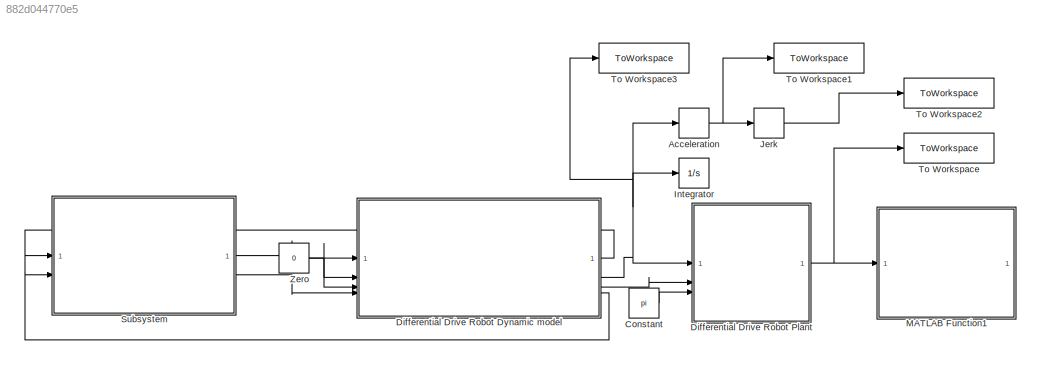
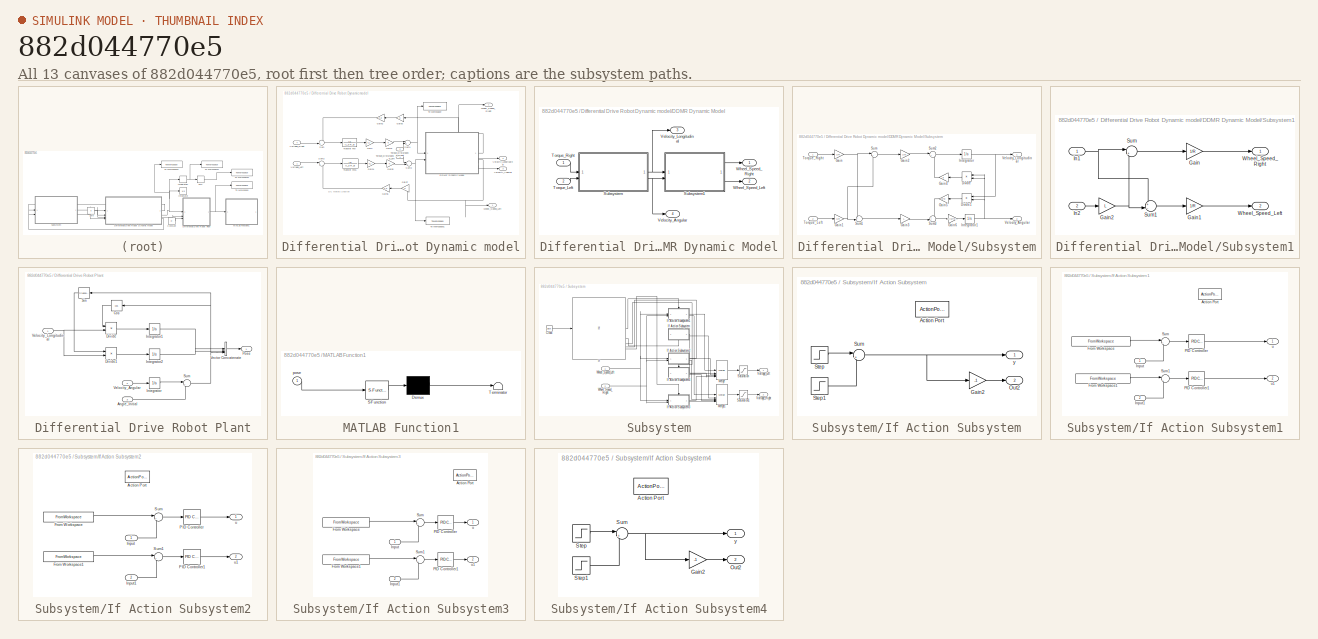
[diagram: thumbnail index - all 13 canvases of the model, root first then tree order]
MODEL slx_882d044770e5
KIND model
CONFIG AbsTol = auto
CONFIG EnableMultiTasking = off
CONFIG FixedStep = auto
CONFIG MaxStep = auto
CONFIG MinStep = auto
CONFIG RelTol = 1e-3
CONFIG SampleTimeConstraint = Unconstrained
CONFIG SolverName = VariableStepAuto
CONFIG StartTime = 0.0
CONFIG StopTime = 23.55
BLOCK [Derivative] Acceleration
BLOCK [Constant] Constant
  Value = pi
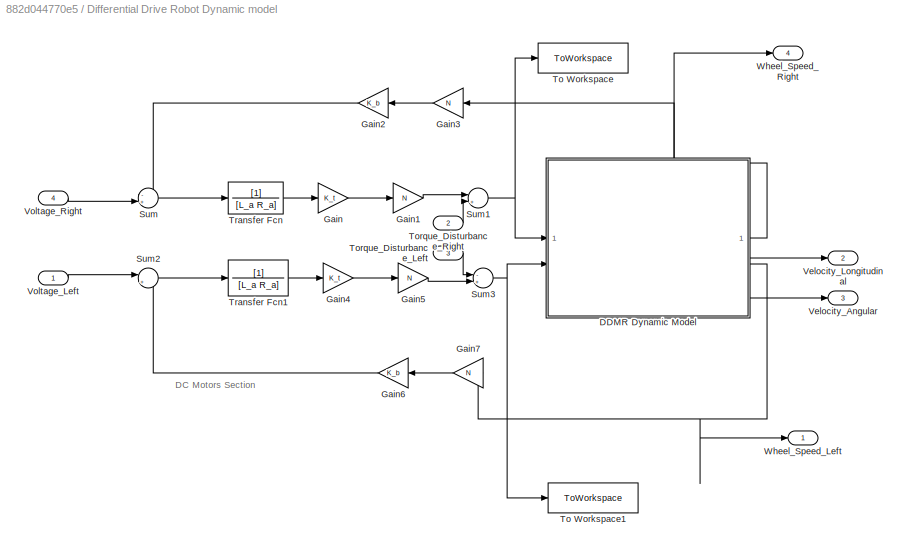
BLOCK [SubSystem] Differential Drive Robot Dynamic model
BLOCK [SubSystem] Differential Drive Robot Dynamic model/DDMR Dynamic Model
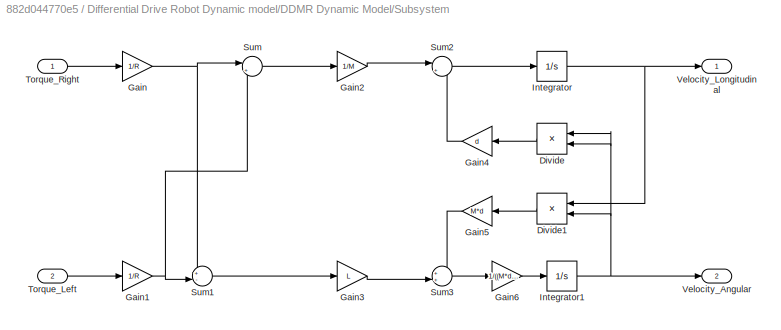
BLOCK [SubSystem] Differential Drive Robot Dynamic model/DDMR Dynamic Model/Subsystem
BLOCK [Product] Differential Drive Robot Dynamic model/DDMR Dynamic Model/Subsystem/Divide
  Inputs = **
BLOCK [Product] Differential Drive Robot Dynamic model/DDMR Dynamic Model/Subsystem/Divide1
  Inputs = **
BLOCK [Gain] Differential Drive Robot Dynamic model/DDMR Dynamic Model/Subsystem/Gain
  Gain = 1/R
BLOCK [Gain] Differential Drive Robot Dynamic model/DDMR Dynamic Model/Subsystem/Gain1
  Gain = 1/R
BLOCK [Gain] Differential Drive Robot Dynamic model/DDMR Dynamic Model/Subsystem/Gain2
  Gain = 1/M
BLOCK [Gain] Differential Drive Robot Dynamic model/DDMR Dynamic Model/Subsystem/Gain3
  Gain = L
BLOCK [Gain] Differential Drive Robot Dynamic model/DDMR Dynamic Model/Subsystem/Gain4
  Gain = d
BLOCK [Gain] Differential Drive Robot Dynamic model/DDMR Dynamic Model/Subsystem/Gain5
  Gain = M*d
BLOCK [Gain] Differential Drive Robot Dynamic model/DDMR Dynamic Model/Subsystem/Gain6
  Gain = 1/((M*d^2) + J)
BLOCK [Integrator] Differential Drive Robot Dynamic model/DDMR Dynamic Model/Subsystem/Integrator
BLOCK [Integrator] Differential Drive Robot Dynamic model/DDMR Dynamic Model/Subsystem/Integrator1
BLOCK [Sum] Differential Drive Robot Dynamic model/DDMR Dynamic Model/Subsystem/Sum
  Inputs = |++
BLOCK [Sum] Differential Drive Robot Dynamic model/DDMR Dynamic Model/Subsystem/Sum1
  Inputs = +-|
BLOCK [Sum] Differential Drive Robot Dynamic model/DDMR Dynamic Model/Subsystem/Sum2
  Inputs = |++
BLOCK [Sum] Differential Drive Robot Dynamic model/DDMR Dynamic Model/Subsystem/Sum3
  Inputs = ++|
BLOCK [Inport] Differential Drive Robot Dynamic model/DDMR Dynamic Model/Subsystem/Torque_Left
  Port = 2
BLOCK [Inport] Differential Drive Robot Dynamic model/DDMR Dynamic Model/Subsystem/Torque_Right
BLOCK [Outport] Differential Drive Robot Dynamic model/DDMR Dynamic Model/Subsystem/Velocity_Angular
  Port = 2
BLOCK [Outport] Differential Drive Robot Dynamic model/DDMR Dynamic Model/Subsystem/Velocity_Longitudinal
BLOCK [SubSystem] Differential Drive Robot Dynamic model/DDMR Dynamic Model/Subsystem1
BLOCK [Gain] Differential Drive Robot Dynamic model/DDMR Dynamic Model/Subsystem1/Gain
  Gain = 1/R
BLOCK [Gain] Differential Drive Robot Dynamic model/DDMR Dynamic Model/Subsystem1/Gain1
  Gain = 1/R
BLOCK [Gain] Differential Drive Robot Dynamic model/DDMR Dynamic Model/Subsystem1/Gain2
  Gain = L
BLOCK [Inport] Differential Drive Robot Dynamic model/DDMR Dynamic Model/Subsystem1/In1
BLOCK [Inport] Differential Drive Robot Dynamic model/DDMR Dynamic Model/Subsystem1/In2
  Port = 2
BLOCK [Sum] Differential Drive Robot Dynamic model/DDMR Dynamic Model/Subsystem1/Sum
  Inputs = |++
BLOCK [Sum] Differential Drive Robot Dynamic model/DDMR Dynamic Model/Subsystem1/Sum1
  Inputs = +-|
BLOCK [Outport] Differential Drive Robot Dynamic model/DDMR Dynamic Model/Subsystem1/Wheel_Speed_Left
  Port = 2
BLOCK [Outport] Differential Drive Robot Dynamic model/DDMR Dynamic Model/Subsystem1/Wheel_Speed_Right
BLOCK [Inport] Differential Drive Robot Dynamic model/DDMR Dynamic Model/Torque_Left
  Port = 2
BLOCK [Inport] Differential Drive Robot Dynamic model/DDMR Dynamic Model/Torque_Right
BLOCK [Outport] Differential Drive Robot Dynamic model/DDMR Dynamic Model/Velocity_Angular
  Port = 4
BLOCK [Outport] Differential Drive Robot Dynamic model/DDMR Dynamic Model/Velocity_Longitudinal
  Port = 3
BLOCK [Outport] Differential Drive Robot Dynamic model/DDMR Dynamic Model/Wheel_Speed_Left
  Port = 2
BLOCK [Outport] Differential Drive Robot Dynamic model/DDMR Dynamic Model/Wheel_Speed_Right
BLOCK [Gain] Differential Drive Robot Dynamic model/Gain
  Gain = K_t
BLOCK [Gain] Differential Drive Robot Dynamic model/Gain1
  Gain = N
BLOCK [Gain] Differential Drive Robot Dynamic model/Gain2
  Gain = K_b
BLOCK [Gain] Differential Drive Robot Dynamic model/Gain3
  Gain = N
BLOCK [Gain] Differential Drive Robot Dynamic model/Gain4
  Gain = K_t
BLOCK [Gain] Differential Drive Robot Dynamic model/Gain5
  Gain = N
BLOCK [Gain] Differential Drive Robot Dynamic model/Gain6
  Gain = K_b
BLOCK [Gain] Differential Drive Robot Dynamic model/Gain7
  Gain = N
BLOCK [Sum] Differential Drive Robot Dynamic model/Sum
  Inputs = -+|
BLOCK [Sum] Differential Drive Robot Dynamic model/Sum1
  Inputs = |+-
BLOCK [Sum] Differential Drive Robot Dynamic model/Sum2
  Inputs = |+-
BLOCK [Sum] Differential Drive Robot Dynamic model/Sum3
  Inputs = -+|
BLOCK [ToWorkspace] Differential Drive Robot Dynamic model/To Workspace
  FixptAsFi = on
  MaxDataPoints = inf
  SampleTime = -1
  Save2DSignal = 2-D array (concatenate along first dimension)
  SaveFormat = Structure With Time
  VariableName = torque_right_wheel
BLOCK [ToWorkspace] Differential Drive Robot Dynamic model/To Workspace1
  FixptAsFi = on
  MaxDataPoints = inf
  SampleTime = -1
  SaveFormat = Structure With Time
  VariableName = torque_left_wheel
BLOCK [Inport] Differential Drive Robot Dynamic model/Torque_Disturbance_Left
  Port = 3
BLOCK [Inport] Differential Drive Robot Dynamic model/Torque_Disturbance_Right
  Port = 2
BLOCK [TransferFcn] Differential Drive Robot Dynamic model/Transfer Fcn
  Denominator = [L_a R_a]
BLOCK [TransferFcn] Differential Drive Robot Dynamic model/Transfer Fcn1
  Denominator = [L_a R_a]
BLOCK [Outport] Differential Drive Robot Dynamic model/Velocity_Angular
  Port = 3
BLOCK [Outport] Differential Drive Robot Dynamic model/Velocity_Longitudinal
  Port = 2
BLOCK [Inport] Differential Drive Robot Dynamic model/Voltage_Left
BLOCK [Inport] Differential Drive Robot Dynamic model/Voltage_Right
  Port = 4
BLOCK [Outport] Differential Drive Robot Dynamic model/Wheel_Speed_Left
BLOCK [Outport] Differential Drive Robot Dynamic model/Wheel_Speed_Right
  Port = 4
BLOCK [SubSystem] Differential Drive Robot Plant
BLOCK [Inport] Differential Drive Robot Plant/Angle_Initial
  Port = 3
BLOCK [Trigonometry] Differential Drive Robot Plant/Cos
  Operator = cos
BLOCK [Product] Differential Drive Robot Plant/Divide
  Inputs = **
BLOCK [Product] Differential Drive Robot Plant/Divide1
  Inputs = **
BLOCK [Integrator] Differential Drive Robot Plant/Integrator
BLOCK [Integrator] Differential Drive Robot Plant/Integrator1
BLOCK [Integrator] Differential Drive Robot Plant/Integrator2
BLOCK [Outport] Differential Drive Robot Plant/Pose
BLOCK [Trigonometry] Differential Drive Robot Plant/Sin
BLOCK [Sum] Differential Drive Robot Plant/Sum
  Inputs = |++
BLOCK [Concatenate] Differential Drive Robot Plant/Vector Concatenate
  NumInputs = 3
BLOCK [Inport] Differential Drive Robot Plant/Velocity_Angular
  Port = 2
BLOCK [Inport] Differential Drive Robot Plant/Velocity_Longitudinal
BLOCK [Integrator] Integrator
BLOCK [Derivative] Jerk
BLOCK [SubSystem] MATLAB Function1
  ErrorFcn = Stateflow.Translate.translate
  LibrarySourceBlock = simulink/User-Defined\nFunctions/MATLAB Function
  PermitHierarchicalResolution = ExplicitOnly
  SFBlockType = MATLAB Function
  TreatAsAtomicUnit = on
BLOCK [Demux] MATLAB Function1/ Demux 
  Outputs = 1
BLOCK [S-Function] MATLAB Function1/ SFunction 
  EnableBusSupport = on
  FunctionName = sf_sfun
  PortCounts = [1 1]
  SFcnIsStateOwnerBlock = off
  SFunctionDeploymentMode = off
  Tag = Stateflow S-Function 1
BLOCK [Terminator] MATLAB Function1/ Terminator 
BLOCK [Inport] MATLAB Function1/pose
BLOCK [SubSystem] Subsystem
BLOCK [Clock] Subsystem/Clock
BLOCK [If] Subsystem/If
  ElseIfExpressions = (u1 > 6.5)&(u1 <= 10.525), (u1 > 10.525) & (u1 <= 15.3583), (u1 > 15.3583) & (u1 <= 19.3833),(u1 > 19.3833)
  IfExpression = u1 <= 6.5
  ShowElse = off
BLOCK [SubSystem] Subsystem/If Action Subsystem
  TreatAsAtomicUnit = on
BLOCK [ActionPort] Subsystem/If Action Subsystem/Action Port
  ActionPortLabel = elseif((u1 > 6.5)&(u1 <= 10.525))
BLOCK [Gain] Subsystem/If Action Subsystem/Gain2
  Gain = -1
BLOCK [Outport] Subsystem/If Action Subsystem/Out2
  Port = 2
BLOCK [Step] Subsystem/If Action Subsystem/Step
  After = 2
  SampleTime = 0
  Time = 6.5
BLOCK [Step] Subsystem/If Action Subsystem/Step1
  After = 2
  SampleTime = 0
  Time = 7.77
BLOCK [Sum] Subsystem/If Action Subsystem/Sum
  Inputs = |+-
BLOCK [Outport] Subsystem/If Action Subsystem/y
BLOCK [SubSystem] Subsystem/If Action Subsystem1
  TreatAsAtomicUnit = on
BLOCK [ActionPort] Subsystem/If Action Subsystem1/Action Port
  ActionPortLabel = if(u1 <= 6.5)
BLOCK [FromWorkspace] Subsystem/If Action Subsystem1/From Workspace
  VariableName = simin_left_wheel_15
  ZeroCross = off
BLOCK [FromWorkspace] Subsystem/If Action Subsystem1/From Workspace1
  VariableName = simin_right_wheel_15
  ZeroCross = off
BLOCK [Inport] Subsystem/If Action Subsystem1/Input
BLOCK [Inport] Subsystem/If Action Subsystem1/Input1
  Port = 2
BLOCK [Reference] Subsystem/If Action Subsystem1/PID Controller  REF=slpidlib/PID Controller
  LibrarySourceBlock = simulink/Continuous/PID Controller
  SourceBlock = slpidlib/PID Controller
  SourceType = PID 1dof
BLOCK [Reference] Subsystem/If Action Subsystem1/PID Controller1  REF=slpidlib/PID Controller
  LibrarySourceBlock = simulink/Continuous/PID Controller
  SourceBlock = slpidlib/PID Controller
  SourceType = PID 1dof
BLOCK [Sum] Subsystem/If Action Subsystem1/Sum
  Inputs = |+-
BLOCK [Sum] Subsystem/If Action Subsystem1/Sum1
  Inputs = |+-
BLOCK [Outport] Subsystem/If Action Subsystem1/u
BLOCK [Outport] Subsystem/If Action Subsystem1/u1
  Port = 2
BLOCK [SubSystem] Subsystem/If Action Subsystem2
  TreatAsAtomicUnit = on
BLOCK [ActionPort] Subsystem/If Action Subsystem2/Action Port
  ActionPortLabel = elseif( (u1 > 10.525) & (u1 <= 15.3583))
BLOCK [FromWorkspace] Subsystem/If Action Subsystem2/From Workspace
  VariableName = simin_left_wheel_10
  ZeroCross = off
BLOCK [FromWorkspace] Subsystem/If Action Subsystem2/From Workspace1
  VariableName = simin_right_wheel_10
  ZeroCross = off
BLOCK [Inport] Subsystem/If Action Subsystem2/Input
BLOCK [Inport] Subsystem/If Action Subsystem2/Input1
  Port = 2
BLOCK [Reference] Subsystem/If Action Subsystem2/PID Controller  REF=slpidlib/PID Controller
  LibrarySourceBlock = simulink/Continuous/PID Controller
  SourceBlock = slpidlib/PID Controller
  SourceType = PID 1dof
BLOCK [Reference] Subsystem/If Action Subsystem2/PID Controller1  REF=slpidlib/PID Controller
  LibrarySourceBlock = simulink/Continuous/PID Controller
  SourceBlock = slpidlib/PID Controller
  SourceType = PID 1dof
BLOCK [Sum] Subsystem/If Action Subsystem2/Sum
  Inputs = |+-
BLOCK [Sum] Subsystem/If Action Subsystem2/Sum1
  Inputs = |+-
BLOCK [Outport] Subsystem/If Action Subsystem2/u
BLOCK [Outport] Subsystem/If Action Subsystem2/u1
  Port = 2
BLOCK [SubSystem] Subsystem/If Action Subsystem3
  TreatAsAtomicUnit = on
BLOCK [ActionPort] Subsystem/If Action Subsystem3/Action Port
  ActionPortLabel = elseif((u1 > 19.3833))
BLOCK [FromWorkspace] Subsystem/If Action Subsystem3/From Workspace
  VariableName = simin_left_wheel_8
  ZeroCross = off
BLOCK [FromWorkspace] Subsystem/If Action Subsystem3/From Workspace1
  VariableName = simin_right_wheel_8
  ZeroCross = off
BLOCK [Inport] Subsystem/If Action Subsystem3/Input
BLOCK [Inport] Subsystem/If Action Subsystem3/Input1
  Port = 2
BLOCK [Reference] Subsystem/If Action Subsystem3/PID Controller  REF=slpidlib/PID Controller
  LibrarySourceBlock = simulink/Continuous/PID Controller
  SourceBlock = slpidlib/PID Controller
  SourceType = PID 1dof
BLOCK [Reference] Subsystem/If Action Subsystem3/PID Controller1  REF=slpidlib/PID Controller
  LibrarySourceBlock = simulink/Continuous/PID Controller
  SourceBlock = slpidlib/PID Controller
  SourceType = PID 1dof
BLOCK [Sum] Subsystem/If Action Subsystem3/Sum
  Inputs = |+-
BLOCK [Sum] Subsystem/If Action Subsystem3/Sum1
  Inputs = |+-
BLOCK [Outport] Subsystem/If Action Subsystem3/u
BLOCK [Outport] Subsystem/If Action Subsystem3/u1
  Port = 2
BLOCK [SubSystem] Subsystem/If Action Subsystem4
  TreatAsAtomicUnit = on
BLOCK [ActionPort] Subsystem/If Action Subsystem4/Action Port
  ActionPortLabel = elseif( (u1 > 15.3583) & (u1 <= 19.3833))
BLOCK [Gain] Subsystem/If Action Subsystem4/Gain2
  Gain = -1
BLOCK [Outport] Subsystem/If Action Subsystem4/Out2
  Port = 2
BLOCK [Step] Subsystem/If Action Subsystem4/Step
  After = 1.7
  SampleTime = 0
  Time = 15.3583
BLOCK [Step] Subsystem/If Action Subsystem4/Step1
  After = 1.7
  SampleTime = 0
  Time = 16.83
BLOCK [Sum] Subsystem/If Action Subsystem4/Sum
  Inputs = |+-
BLOCK [Outport] Subsystem/If Action Subsystem4/y
BLOCK [Merge] Subsystem/Merge
  Inputs = 5
BLOCK [Merge] Subsystem/Merge1
  Inputs = 5
BLOCK [Saturate] Subsystem/Saturation
  LowerLimit = -500
  UpperLimit = 500
BLOCK [Saturate] Subsystem/Saturation1
  LowerLimit = -500
  UpperLimit = 500
BLOCK [Outport] Subsystem/Voltage_Left
BLOCK [Outport] Subsystem/Voltage_Right
  Port = 2
BLOCK [Inport] Subsystem/Wheel_Speed_Left
BLOCK [Inport] Subsystem/Wheel_Speed_Right
  Port = 2
BLOCK [ToWorkspace] To Workspace
  FixptAsFi = on
  MaxDataPoints = inf
  SampleTime = -1
  Save2DSignal = 2-D array (concatenate along first dimension)
  VariableName = simout
BLOCK [ToWorkspace] To Workspace1
  FixptAsFi = on
  MaxDataPoints = inf
  SampleTime = -1
  Save2DSignal = 2-D array (concatenate along first dimension)
  VariableName = acceleration
BLOCK [ToWorkspace] To Workspace2
  FixptAsFi = on
  MaxDataPoints = inf
  SampleTime = -1
  Save2DSignal = 2-D array (concatenate along first dimension)
  VariableName = Jerk
BLOCK [ToWorkspace] To Workspace3
  FixptAsFi = on
  MaxDataPoints = inf
  SampleTime = -1
  Save2DSignal = 2-D array (concatenate along first dimension)
  VariableName = Steady_state_vel
BLOCK [Constant] Zero
  OutDataTypeStr = Inherit: Inherit via back propagation
  Value = 0
ANNOTATION Differential Drive Robot Dynamic model: DC Motors Section
NET Acceleration:1 -> Jerk:1, To Workspace1:1
LINE Constant:1 -> Differential Drive Robot Plant:3
LINE Differential Drive Robot Dynamic model/DDMR Dynamic Model/Subsystem/Divide1:1 -> Differential Drive Robot Dynamic model/DDMR Dynamic Model/Subsystem/Gain5:1
LINE Differential Drive Robot Dynamic model/DDMR Dynamic Model/Subsystem/Divide:1 -> Differential Drive Robot Dynamic model/DDMR Dynamic Model/Subsystem/Gain4:1
NET Differential Drive Robot Dynamic model/DDMR Dynamic Model/Subsystem/Gain1:1 -> Differential Drive Robot Dynamic model/DDMR Dynamic Model/Subsystem/Sum1:2, Differential Drive Robot Dynamic model/DDMR Dynamic Model/Subsystem/Sum:2
LINE Differential Drive Robot Dynamic model/DDMR Dynamic Model/Subsystem/Gain2:1 -> Differential Drive Robot Dynamic model/DDMR Dynamic Model/Subsystem/Sum2:1
LINE Differential Drive Robot Dynamic model/DDMR Dynamic Model/Subsystem/Gain3:1 -> Differential Drive Robot Dynamic model/DDMR Dynamic Model/Subsystem/Sum3:2
LINE Differential Drive Robot Dynamic model/DDMR Dynamic Model/Subsystem/Gain4:1 -> Differential Drive Robot Dynamic model/DDMR Dynamic Model/Subsystem/Sum2:2
LINE Differential Drive Robot Dynamic model/DDMR Dynamic Model/Subsystem/Gain5:1 -> Differential Drive Robot Dynamic model/DDMR Dynamic Model/Subsystem/Sum3:1
LINE Differential Drive Robot Dynamic model/DDMR Dynamic Model/Subsystem/Gain6:1 -> Differential Drive Robot Dynamic model/DDMR Dynamic Model/Subsystem/Integrator1:1
NET Differential Drive Robot Dynamic model/DDMR Dynamic Model/Subsystem/Gain:1 -> Differential Drive Robot Dynamic model/DDMR Dynamic Model/Subsystem/Sum1:1, Differential Drive Robot Dynamic model/DDMR Dynamic Model/Subsystem/Sum:1
NET Differential Drive Robot Dynamic model/DDMR Dynamic Model/Subsystem/Integrator1:1 -> Differential Drive Robot Dynamic model/DDMR Dynamic Model/Subsystem/Divide1:2, Differential Drive Robot Dynamic model/DDMR Dynamic Model/Subsystem/Divide:1, Differential Drive Robot Dynamic model/DDMR Dynamic Model/Subsystem/Divide:2, Differential Drive Robot Dynamic model/DDMR Dynamic Model/Subsystem/Velocity_Angular:1
NET Differential Drive Robot Dynamic model/DDMR Dynamic Model/Subsystem/Integrator:1 -> Differential Drive Robot Dynamic model/DDMR Dynamic Model/Subsystem/Divide1:1, Differential Drive Robot Dynamic model/DDMR Dynamic Model/Subsystem/Velocity_Longitudinal:1
LINE Differential Drive Robot Dynamic model/DDMR Dynamic Model/Subsystem/Sum1:1 -> Differential Drive Robot Dynamic model/DDMR Dynamic Model/Subsystem/Gain3:1
LINE Differential Drive Robot Dynamic model/DDMR Dynamic Model/Subsystem/Sum2:1 -> Differential Drive Robot Dynamic model/DDMR Dynamic Model/Subsystem/Integrator:1
LINE Differential Drive Robot Dynamic model/DDMR Dynamic Model/Subsystem/Sum3:1 -> Differential Drive Robot Dynamic model/DDMR Dynamic Model/Subsystem/Gain6:1
LINE Differential Drive Robot Dynamic model/DDMR Dynamic Model/Subsystem/Sum:1 -> Differential Drive Robot Dynamic model/DDMR Dynamic Model/Subsystem/Gain2:1
LINE Differential Drive Robot Dynamic model/DDMR Dynamic Model/Subsystem/Torque_Left:1 -> Differential Drive Robot Dynamic model/DDMR Dynamic Model/Subsystem/Gain1:1
LINE Differential Drive Robot Dynamic model/DDMR Dynamic Model/Subsystem/Torque_Right:1 -> Differential Drive Robot Dynamic model/DDMR Dynamic Model/Subsystem/Gain:1
LINE Differential Drive Robot Dynamic model/DDMR Dynamic Model/Subsystem1/Gain1:1 -> Differential Drive Robot Dynamic model/DDMR Dynamic Model/Subsystem1/Wheel_Speed_Left:1
NET Differential Drive Robot Dynamic model/DDMR Dynamic Model/Subsystem1/Gain2:1 -> Differential Drive Robot Dynamic model/DDMR Dynamic Model/Subsystem1/Sum1:2, Differential Drive Robot Dynamic model/DDMR Dynamic Model/Subsystem1/Sum:2
LINE Differential Drive Robot Dynamic model/DDMR Dynamic Model/Subsystem1/Gain:1 -> Differential Drive Robot Dynamic model/DDMR Dynamic Model/Subsystem1/Wheel_Speed_Right:1
NET Differential Drive Robot Dynamic model/DDMR Dynamic Model/Subsystem1/In1:1 -> Differential Drive Robot Dynamic model/DDMR Dynamic Model/Subsystem1/Sum1:1, Differential Drive Robot Dynamic model/DDMR Dynamic Model/Subsystem1/Sum:1
LINE Differential Drive Robot Dynamic model/DDMR Dynamic Model/Subsystem1/In2:1 -> Differential Drive Robot Dynamic model/DDMR Dynamic Model/Subsystem1/Gain2:1
LINE Differential Drive Robot Dynamic model/DDMR Dynamic Model/Subsystem1/Sum1:1 -> Differential Drive Robot Dynamic model/DDMR Dynamic Model/Subsystem1/Gain1:1
LINE Differential Drive Robot Dynamic model/DDMR Dynamic Model/Subsystem1/Sum:1 -> Differential Drive Robot Dynamic model/DDMR Dynamic Model/Subsystem1/Gain:1
LINE Differential Drive Robot Dynamic model/DDMR Dynamic Model/Subsystem1:1 -> Differential Drive Robot Dynamic model/DDMR Dynamic Model/Wheel_Speed_Right:1
LINE Differential Drive Robot Dynamic model/DDMR Dynamic Model/Subsystem1:2 -> Differential Drive Robot Dynamic model/DDMR Dynamic Model/Wheel_Speed_Left:1
NET Differential Drive Robot Dynamic model/DDMR Dynamic Model/Subsystem:1 -> Differential Drive Robot Dynamic model/DDMR Dynamic Model/Subsystem1:1, Differential Drive Robot Dynamic model/DDMR Dynamic Model/Velocity_Longitudinal:1
NET Differential Drive Robot Dynamic model/DDMR Dynamic Model/Subsystem:2 -> Differential Drive Robot Dynamic model/DDMR Dynamic Model/Subsystem1:2, Differential Drive Robot Dynamic model/DDMR Dynamic Model/Velocity_Angular:1
LINE Differential Drive Robot Dynamic model/DDMR Dynamic Model/Torque_Left:1 -> Differential Drive Robot Dynamic model/DDMR Dynamic Model/Subsystem:2
LINE Differential Drive Robot Dynamic model/DDMR Dynamic Model/Torque_Right:1 -> Differential Drive Robot Dynamic model/DDMR Dynamic Model/Subsystem:1
NET Differential Drive Robot Dynamic model/DDMR Dynamic Model:1 -> Differential Drive Robot Dynamic model/Gain3:1, Differential Drive Robot Dynamic model/Wheel_Speed_Right:1
NET Differential Drive Robot Dynamic model/DDMR Dynamic Model:2 -> Differential Drive Robot Dynamic model/Gain7:1, Differential Drive Robot Dynamic model/Wheel_Speed_Left:1
LINE Differential Drive Robot Dynamic model/DDMR Dynamic Model:3 -> Differential Drive Robot Dynamic model/Velocity_Longitudinal:1
LINE Differential Drive Robot Dynamic model/DDMR Dynamic Model:4 -> Differential Drive Robot Dynamic model/Velocity_Angular:1
LINE Differential Drive Robot Dynamic model/Gain1:1 -> Differential Drive Robot Dynamic model/Sum1:1
LINE Differential Drive Robot Dynamic model/Gain2:1 -> Differential Drive Robot Dynamic model/Sum:1
LINE Differential Drive Robot Dynamic model/Gain3:1 -> Differential Drive Robot Dynamic model/Gain2:1
LINE Differential Drive Robot Dynamic model/Gain4:1 -> Differential Drive Robot Dynamic model/Gain5:1
LINE Differential Drive Robot Dynamic model/Gain5:1 -> Differential Drive Robot Dynamic model/Sum3:2
LINE Differential Drive Robot Dynamic model/Gain6:1 -> Differential Drive Robot Dynamic model/Sum2:2
LINE Differential Drive Robot Dynamic model/Gain7:1 -> Differential Drive Robot Dynamic model/Gain6:1
LINE Differential Drive Robot Dynamic model/Gain:1 -> Differential Drive Robot Dynamic model/Gain1:1
NET Differential Drive Robot Dynamic model/Sum1:1 -> Differential Drive Robot Dynamic model/DDMR Dynamic Model:1, Differential Drive Robot Dynamic model/To Workspace:1
LINE Differential Drive Robot Dynamic model/Sum2:1 -> Differential Drive Robot Dynamic model/Transfer Fcn1:1
NET Differential Drive Robot Dynamic model/Sum3:1 -> Differential Drive Robot Dynamic model/DDMR Dynamic Model:2, Differential Drive Robot Dynamic model/To Workspace1:1
LINE Differential Drive Robot Dynamic model/Sum:1 -> Differential Drive Robot Dynamic model/Transfer Fcn:1
LINE Differential Drive Robot Dynamic model/Torque_Disturbance_Left:1 -> Differential Drive Robot Dynamic model/Sum3:1
LINE Differential Drive Robot Dynamic model/Torque_Disturbance_Right:1 -> Differential Drive Robot Dynamic model/Sum1:2
LINE Differential Drive Robot Dynamic model/Transfer Fcn1:1 -> Differential Drive Robot Dynamic model/Gain4:1
LINE Differential Drive Robot Dynamic model/Transfer Fcn:1 -> Differential Drive Robot Dynamic model/Gain:1
LINE Differential Drive Robot Dynamic model/Voltage_Left:1 -> Differential Drive Robot Dynamic model/Sum2:1
LINE Differential Drive Robot Dynamic model/Voltage_Right:1 -> Differential Drive Robot Dynamic model/Sum:2
LINE Differential Drive Robot Dynamic model:1 -> Subsystem:1
NET Differential Drive Robot Dynamic model:2 -> Acceleration:1, Differential Drive Robot Plant:1, Integrator:1, To Workspace3:1
LINE Differential Drive Robot Dynamic model:3 -> Differential Drive Robot Plant:2
LINE Differential Drive Robot Dynamic model:4 -> Subsystem:2
LINE Differential Drive Robot Plant/Angle_Initial:1 -> Differential Drive Robot Plant/Sum:2
LINE Differential Drive Robot Plant/Cos:1 -> Differential Drive Robot Plant/Divide:1
LINE Differential Drive Robot Plant/Divide1:1 -> Differential Drive Robot Plant/Integrator2:1
LINE Differential Drive Robot Plant/Divide:1 -> Differential Drive Robot Plant/Integrator1:1
LINE Differential Drive Robot Plant/Integrator1:1 -> Differential Drive Robot Plant/Vector Concatenate:1
LINE Differential Drive Robot Plant/Integrator2:1 -> Differential Drive Robot Plant/Vector Concatenate:2
LINE Differential Drive Robot Plant/Integrator:1 -> Differential Drive Robot Plant/Sum:1
LINE Differential Drive Robot Plant/Sin:1 -> Differential Drive Robot Plant/Divide1:1
NET Differential Drive Robot Plant/Sum:1 -> Differential Drive Robot Plant/Cos:1, Differential Drive Robot Plant/Sin:1, Differential Drive Robot Plant/Vector Concatenate:3
LINE Differential Drive Robot Plant/Vector Concatenate:1 -> Differential Drive Robot Plant/Pose:1
LINE Differential Drive Robot Plant/Velocity_Angular:1 -> Differential Drive Robot Plant/Integrator:1
NET Differential Drive Robot Plant/Velocity_Longitudinal:1 -> Differential Drive Robot Plant/Divide1:2, Differential Drive Robot Plant/Divide:2
NET Differential Drive Robot Plant:1 -> MATLAB Function1:1, To Workspace:1
LINE Jerk:1 -> To Workspace2:1
LINE Subsystem/Clock:1 -> Subsystem/If:1
LINE Subsystem/If Action Subsystem/Gain2:1 -> Subsystem/If Action Subsystem/Out2:1
LINE Subsystem/If Action Subsystem/Step1:1 -> Subsystem/If Action Subsystem/Sum:2
LINE Subsystem/If Action Subsystem/Step:1 -> Subsystem/If Action Subsystem/Sum:1
NET Subsystem/If Action Subsystem/Sum:1 -> Subsystem/If Action Subsystem/Gain2:1, Subsystem/If Action Subsystem/y:1
LINE Subsystem/If Action Subsystem1/From Workspace1:1 -> Subsystem/If Action Subsystem1/Sum1:1
LINE Subsystem/If Action Subsystem1/From Workspace:1 -> Subsystem/If Action Subsystem1/Sum:1
LINE Subsystem/If Action Subsystem1/Input1:1 -> Subsystem/If Action Subsystem1/Sum1:2
LINE Subsystem/If Action Subsystem1/Input:1 -> Subsystem/If Action Subsystem1/Sum:2
LINE Subsystem/If Action Subsystem1/PID Controller1:1 -> Subsystem/If Action Subsystem1/u1:1
LINE Subsystem/If Action Subsystem1/PID Controller:1 -> Subsystem/If Action Subsystem1/u:1
LINE Subsystem/If Action Subsystem1/Sum1:1 -> Subsystem/If Action Subsystem1/PID Controller1:1
LINE Subsystem/If Action Subsystem1/Sum:1 -> Subsystem/If Action Subsystem1/PID Controller:1
LINE Subsystem/If Action Subsystem1:1 -> Subsystem/Merge:1
LINE Subsystem/If Action Subsystem1:2 -> Subsystem/Merge1:1
LINE Subsystem/If Action Subsystem2/From Workspace1:1 -> Subsystem/If Action Subsystem2/Sum1:1
LINE Subsystem/If Action Subsystem2/From Workspace:1 -> Subsystem/If Action Subsystem2/Sum:1
LINE Subsystem/If Action Subsystem2/Input1:1 -> Subsystem/If Action Subsystem2/Sum1:2
LINE Subsystem/If Action Subsystem2/Input:1 -> Subsystem/If Action Subsystem2/Sum:2
LINE Subsystem/If Action Subsystem2/PID Controller1:1 -> Subsystem/If Action Subsystem2/u1:1
LINE Subsystem/If Action Subsystem2/PID Controller:1 -> Subsystem/If Action Subsystem2/u:1
LINE Subsystem/If Action Subsystem2/Sum1:1 -> Subsystem/If Action Subsystem2/PID Controller1:1
LINE Subsystem/If Action Subsystem2/Sum:1 -> Subsystem/If Action Subsystem2/PID Controller:1
LINE Subsystem/If Action Subsystem2:1 -> Subsystem/Merge:3
LINE Subsystem/If Action Subsystem2:2 -> Subsystem/Merge1:3
LINE Subsystem/If Action Subsystem3/From Workspace1:1 -> Subsystem/If Action Subsystem3/Sum1:1
LINE Subsystem/If Action Subsystem3/From Workspace:1 -> Subsystem/If Action Subsystem3/Sum:1
LINE Subsystem/If Action Subsystem3/Input1:1 -> Subsystem/If Action Subsystem3/Sum1:2
LINE Subsystem/If Action Subsystem3/Input:1 -> Subsystem/If Action Subsystem3/Sum:2
LINE Subsystem/If Action Subsystem3/PID Controller1:1 -> Subsystem/If Action Subsystem3/u1:1
LINE Subsystem/If Action Subsystem3/PID Controller:1 -> Subsystem/If Action Subsystem3/u:1
LINE Subsystem/If Action Subsystem3/Sum1:1 -> Subsystem/If Action Subsystem3/PID Controller1:1
LINE Subsystem/If Action Subsystem3/Sum:1 -> Subsystem/If Action Subsystem3/PID Controller:1
LINE Subsystem/If Action Subsystem3:1 -> Subsystem/Merge:5
LINE Subsystem/If Action Subsystem3:2 -> Subsystem/Merge1:5
LINE Subsystem/If Action Subsystem4/Gain2:1 -> Subsystem/If Action Subsystem4/Out2:1
LINE Subsystem/If Action Subsystem4/Step1:1 -> Subsystem/If Action Subsystem4/Sum:2
LINE Subsystem/If Action Subsystem4/Step:1 -> Subsystem/If Action Subsystem4/Sum:1
NET Subsystem/If Action Subsystem4/Sum:1 -> Subsystem/If Action Subsystem4/Gain2:1, Subsystem/If Action Subsystem4/y:1
LINE Subsystem/If Action Subsystem4:1 -> Subsystem/Merge:4
LINE Subsystem/If Action Subsystem4:2 -> Subsystem/Merge1:4
LINE Subsystem/If Action Subsystem:1 -> Subsystem/Merge:2
LINE Subsystem/If Action Subsystem:2 -> Subsystem/Merge1:2
LINE Subsystem/If:1 -> Subsystem/If Action Subsystem1:ifaction
LINE Subsystem/If:2 -> Subsystem/If Action Subsystem:ifaction
LINE Subsystem/If:3 -> Subsystem/If Action Subsystem2:ifaction
LINE Subsystem/If:4 -> Subsystem/If Action Subsystem4:ifaction
LINE Subsystem/If:5 -> Subsystem/If Action Subsystem3:ifaction
LINE Subsystem/Merge1:1 -> Subsystem/Saturation1:1
LINE Subsystem/Merge:1 -> Subsystem/Saturation:1
LINE Subsystem/Saturation1:1 -> Subsystem/Voltage_Right:1
LINE Subsystem/Saturation:1 -> Subsystem/Voltage_Left:1
NET Subsystem/Wheel_Speed_Left:1 -> Subsystem/If Action Subsystem1:1, Subsystem/If Action Subsystem2:1, Subsystem/If Action Subsystem3:1
NET Subsystem/Wheel_Speed_Right:1 -> Subsystem/If Action Subsystem1:2, Subsystem/If Action Subsystem2:2, Subsystem/If Action Subsystem3:2
LINE Subsystem:1 -> Differential Drive Robot Dynamic model:1
LINE Subsystem:2 -> Differential Drive Robot Dynamic model:4
NET Zero:1 -> Differential Drive Robot Dynamic model:2, Differential Drive Robot Dynamic model:3
note: NET lines group one-source signal fan-out (src -> all destinations, sorted); 1:1 wires keep LINE
CHART MATLAB Function1 states=1 transitions=1
  STATE_LABEL 'eML_blk_kernel()'
  STATE_LABEL "SCRIPT:\nfunction drawRobot(pose)\n\n    x = pose(1);\n    y = pose(2);\n    theta = rad2deg(pose(3));\n\n    radius = 0.25;\n    \n    theta = theta - 90;\n    \n    % Get points for circle\n    angles = 0:5:360;\n    x_c = [cosd(angles)',sind(angles)'];\n    x_c = x_c.*radius;\n\n    % Get points for orientation arrow\n    p1 = [0.2,-0.4];\n    p2 = [0.2,0.4];\n    p3 = [0.6,0.4];\n    p4 = [0,1];\n    inv_x = [-1,1...<+486ch>"
CHART  states=0 transitions=0
